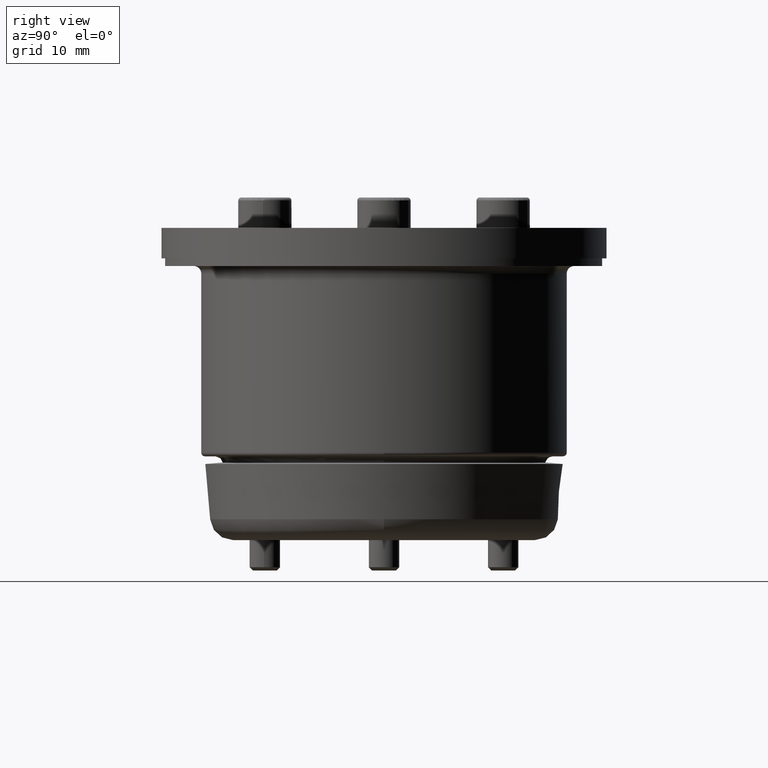
[diagram: clean part render]
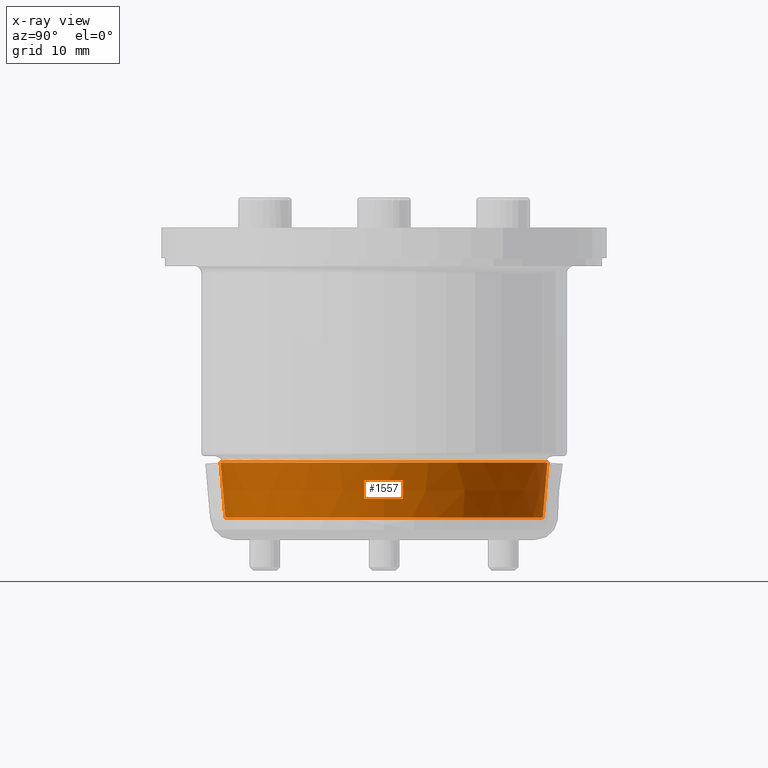
[diagram: x-ray — body ghosted, one internal face saturated and labeled with its STEP entity id]
A machine part, right view, then the same camera in x-ray: the body is ghosted and one INTERNAL B-rep face — a face not visible from any outside direction — is saturated and labeled: STEP entity #1557.
In plain terms, the highlighted conical surface has half-angle 5 deg.
Its self-contained STEP definition (entity closure, byte-faithful):
#207=LINE('',#2825,#269);
#269=VECTOR('',#2336,21.1184080988436);
#302=CONICAL_SURFACE('',#1870,21.1184080988436,0.087266462599716);
#364=FACE_OUTER_BOUND('',#481,.T.);
#481=EDGE_LOOP('',(#1343,#1344,#1345,#1346,#1347,#1348,#1349));
#626=CIRCLE('',#1864,20.8408804324145);
#627=CIRCLE('',#1865,20.8408804324145);
#631=CIRCLE('',#1869,20.8408804324145);
#632=CIRCLE('',#1871,21.475799289347);
#633=CIRCLE('',#1872,21.475799289347);
#770=VERTEX_POINT('',#2810);
#771=VERTEX_POINT('',#2811);
#772=VERTEX_POINT('',#2813);
#775=VERTEX_POINT('',#2822);
#776=VERTEX_POINT('',#2823);
#970=EDGE_CURVE('',#770,#771,#626,.T.);
#971=EDGE_CURVE('',#771,#772,#627,.T.);
#975=EDGE_CURVE('',#772,#770,#631,.T.);
#976=EDGE_CURVE('',#775,#776,#632,.T.);
#977=EDGE_CURVE('',#776,#771,#207,.T.);
#978=EDGE_CURVE('',#776,#775,#633,.T.);
#1343=ORIENTED_EDGE('',*,*,#976,.T.);
#1344=ORIENTED_EDGE('',*,*,#977,.T.);
#1345=ORIENTED_EDGE('',*,*,#970,.F.);
#1346=ORIENTED_EDGE('',*,*,#975,.F.);
#1347=ORIENTED_EDGE('',*,*,#971,.F.);
#1348=ORIENTED_EDGE('',*,*,#977,.F.);
#1349=ORIENTED_EDGE('',*,*,#978,.T.);
#1557=ADVANCED_FACE('',(#364),#302,.F.);
#1864=AXIS2_PLACEMENT_3D('',#2812,#2320,#2321);
#1865=AXIS2_PLACEMENT_3D('',#2814,#2322,#2323);
#1869=AXIS2_PLACEMENT_3D('',#2820,#2330,#2331);
#1870=AXIS2_PLACEMENT_3D('',#2821,#2332,#2333);
#1871=AXIS2_PLACEMENT_3D('',#2824,#2334,#2335);
#1872=AXIS2_PLACEMENT_3D('',#2826,#2337,#2338);
#2320=DIRECTION('center_axis',(0.,1.,0.));
#2321=DIRECTION('ref_axis',(1.,0.,0.));
#2322=DIRECTION('center_axis',(0.,1.,0.));
#2323=DIRECTION('ref_axis',(1.,0.,0.));
#2330=DIRECTION('center_axis',(0.,1.,0.));
#2331=DIRECTION('ref_axis',(1.,0.,0.));
#2332=DIRECTION('center_axis',(0.,1.,0.));
#2333=DIRECTION('ref_axis',(-1.,0.,0.));
#2334=DIRECTION('center_axis',(0.,1.,0.));
#2335=DIRECTION('ref_axis',(-1.,0.,0.));
#2336=DIRECTION('',(-0.0871557427476577,-0.996194698091745,1.06735001383229E-17));
#2337=DIRECTION('center_axis',(0.,1.,0.));
#2338=DIRECTION('ref_axis',(-1.,0.,0.));
#2810=CARTESIAN_POINT('',(-52.0408804324145,0.912844257252343,4.93038065763132E-31));
#2811=CARTESIAN_POINT('',(-10.3591195675855,0.912844257252343,-2.55227175129691E-15));
#2812=CARTESIAN_POINT('Origin',(-31.2,0.912844257252343,-2.55227175129691E-15));
#2813=CARTESIAN_POINT('',(-31.2,0.912844257252343,-20.8408804324145));
#2814=CARTESIAN_POINT('Origin',(-31.2,0.912844257252343,-2.55227175129691E-15));
#2820=CARTESIAN_POINT('Origin',(-31.2,0.912844257252343,-2.55227175129691E-15));
#2821=CARTESIAN_POINT('Origin',(-31.2,4.085,0.));
#2822=CARTESIAN_POINT('',(-52.675799289347,8.17,0.));
#2823=CARTESIAN_POINT('',(-9.72420071065302,8.17,-2.63002688588298E-15));
#2824=CARTESIAN_POINT('Origin',(-31.2,8.17,0.));
#2825=CARTESIAN_POINT('',(-10.0815919011564,4.085,-2.58625908813363E-15));
#2826=CARTESIAN_POINT('Origin',(-31.2,8.17,0.));